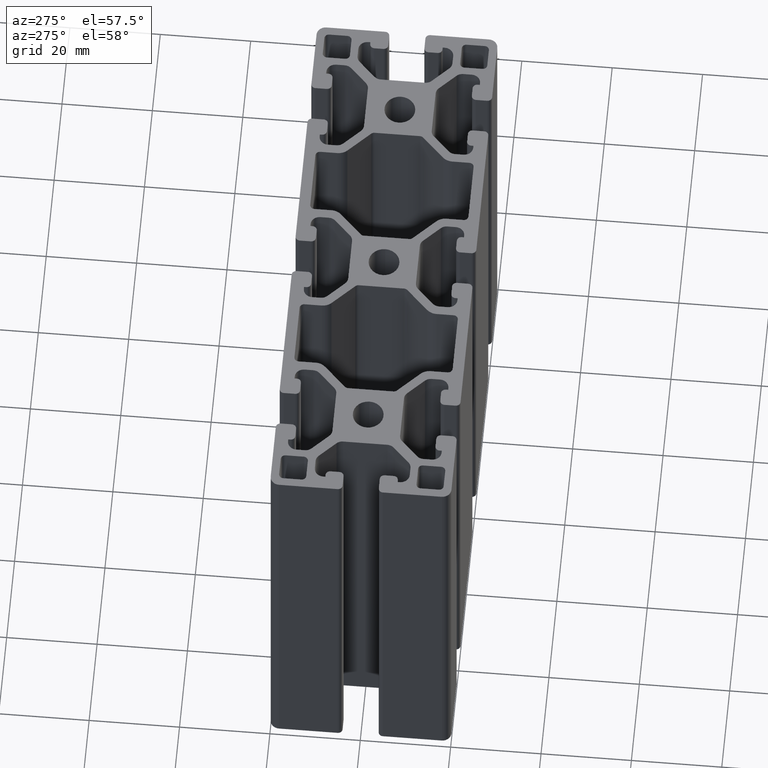
[diagram: clean part render]
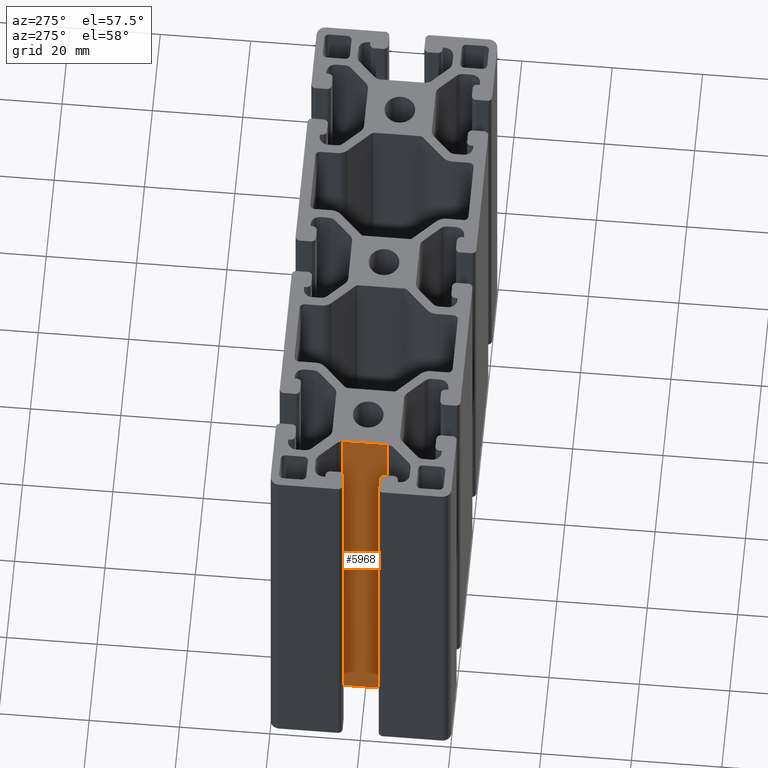
[diagram: same view with one face highlighted and labeled with its STEP entity id]
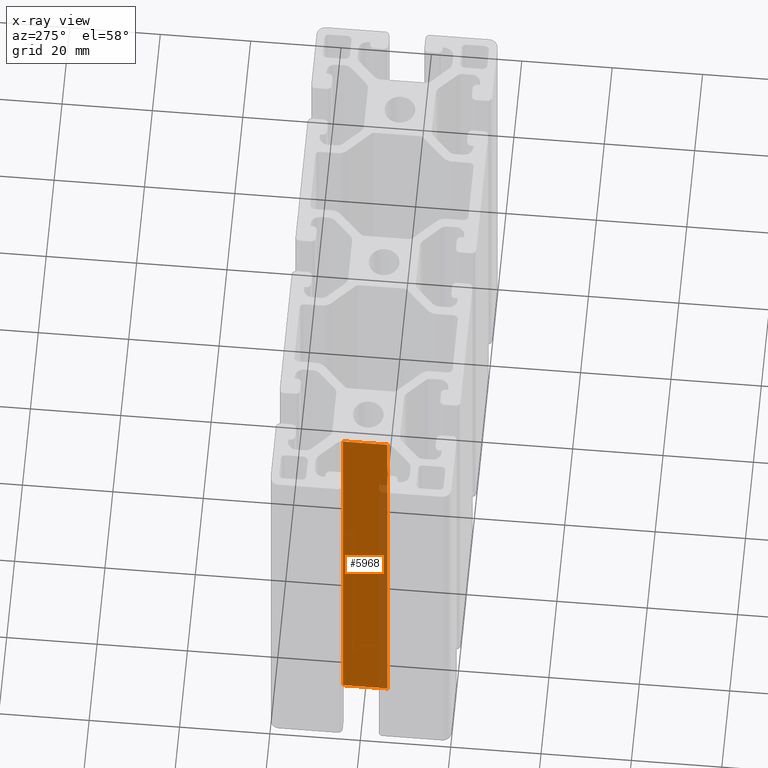
[diagram: x-ray of the same camera — body ghosted, the highlighted face saturated]
A machine part, auxiliary view. The second image highlights one B-rep face of the part: STEP entity #5968.
The next image is the same camera in x-ray: the body ghosted, the highlighted face saturated — about 17% of this face is hidden behind the body in this view.
In plain terms, the highlighted planar face has unit normal (1, 0, 0).
Its self-contained STEP definition (entity closure, byte-faithful):
#151=PLANE('',#6493);
#420=FACE_OUTER_BOUND('',#723,.T.);
#723=EDGE_LOOP('',(#4711,#4712,#4713,#4714));
#1277=LINE('',#9790,#1885);
#1278=LINE('',#9794,#1886);
#1279=LINE('',#9796,#1887);
#1280=LINE('',#9797,#1888);
#1885=VECTOR('',#7988,100.);
#1886=VECTOR('',#7993,9.80761184457489);
#1887=VECTOR('',#7994,100.);
#1888=VECTOR('',#7995,9.80761184457489);
#2783=VERTEX_POINT('',#9787);
#2784=VERTEX_POINT('',#9789);
#2785=VERTEX_POINT('',#9793);
#2786=VERTEX_POINT('',#9795);
#3598=EDGE_CURVE('',#2784,#2783,#1277,.T.);
#3600=EDGE_CURVE('',#2785,#2783,#1278,.T.);
#3601=EDGE_CURVE('',#2786,#2785,#1279,.T.);
#3602=EDGE_CURVE('',#2784,#2786,#1280,.T.);
#4711=ORIENTED_EDGE('',*,*,#3600,.F.);
#4712=ORIENTED_EDGE('',*,*,#3601,.F.);
#4713=ORIENTED_EDGE('',*,*,#3602,.F.);
#4714=ORIENTED_EDGE('',*,*,#3598,.T.);
#5968=ADVANCED_FACE('',(#420),#151,.F.);
#6493=AXIS2_PLACEMENT_3D('',#9792,#7991,#7992);
#7988=DIRECTION('',(0.,0.,1.));
#7991=DIRECTION('center_axis',(1.,0.,0.));
#7992=DIRECTION('ref_axis',(0.,1.,0.));
#7993=DIRECTION('',(0.,-1.,0.));
#7994=DIRECTION('',(0.,0.,1.));
#7995=DIRECTION('',(0.,1.,0.));
#9787=CARTESIAN_POINT('',(-47.5,-4.90380592228743,100.));
#9789=CARTESIAN_POINT('',(-47.5,-4.90380592228743,0.));
#9790=CARTESIAN_POINT('',(-47.5,-4.90380592228743,0.));
#9792=CARTESIAN_POINT('Origin',(-47.5,-4.90380592228743,0.));
#9793=CARTESIAN_POINT('',(-47.5,4.90380592228746,100.));
#9794=CARTESIAN_POINT('',(-47.5,-2.45190296114371,100.));
#9795=CARTESIAN_POINT('',(-47.5,4.90380592228746,0.));
#9796=CARTESIAN_POINT('',(-47.5,4.90380592228746,0.));
#9797=CARTESIAN_POINT('',(-47.5,-2.45190296114371,0.));